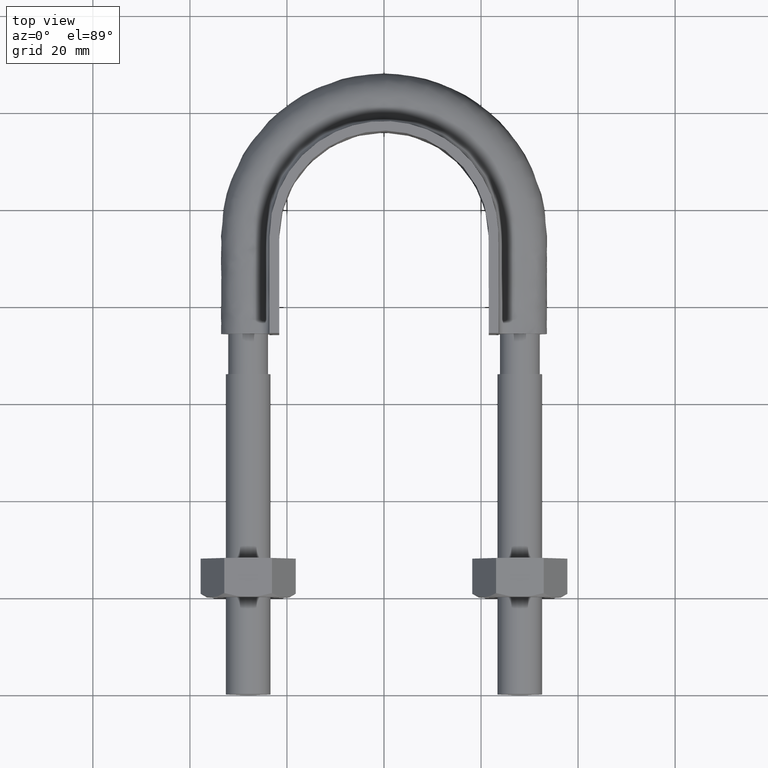
[diagram: clean part render]
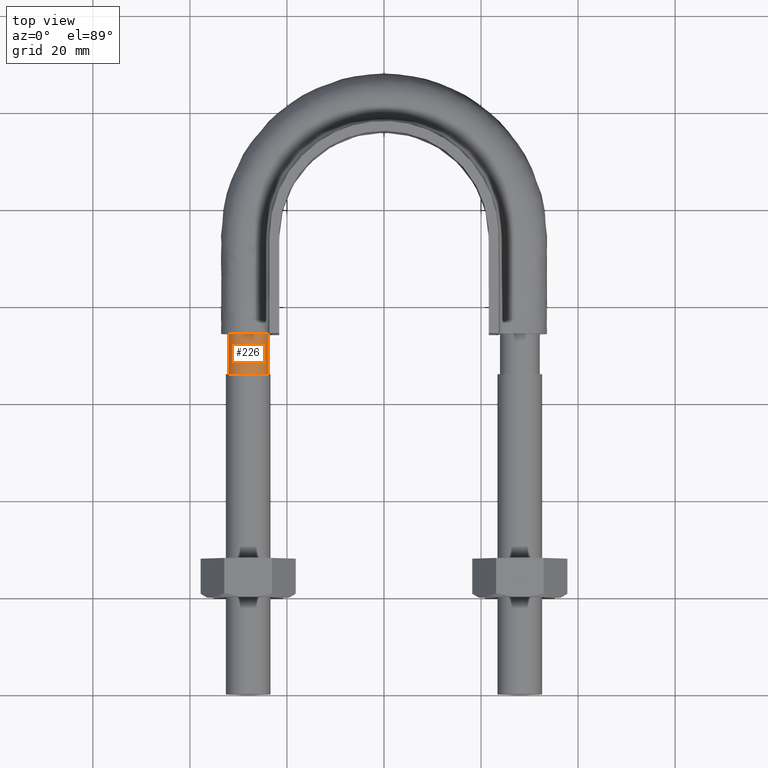
[diagram: same view with one face highlighted and labeled with its STEP entity id]
A machine part, top view. The second image highlights one B-rep face of the part: STEP entity #226.
In plain terms, the highlighted cylindrical surface (bore or boss wall) has radius 4.1 mm, axis along (0, 1, 0).
Its self-contained STEP definition (entity closure, byte-faithful):
#226 = ADVANCED_FACE( '', ( #313, #314 ), #315, .T. );
#313 = FACE_OUTER_BOUND( '', #1161, .T. );
#314 = FACE_OUTER_BOUND( '', #1162, .T. );
#315 = CYLINDRICAL_SURFACE( '', #1163, 4.10000000000000 );
#1161 = EDGE_LOOP( '', ( #1523, #1524, #1525, #1526, #1527, #1528, #1529 ) );
#1162 = EDGE_LOOP( '', ( #1530 ) );
#1163 = AXIS2_PLACEMENT_3D( '', #1531, #1532, #1533 );
#1523 = ORIENTED_EDGE( '', *, *, #2017, .T. );
#1524 = ORIENTED_EDGE( '', *, *, #2018, .T. );
#1525 = ORIENTED_EDGE( '', *, *, #2019, .T. );
#1526 = ORIENTED_EDGE( '', *, *, #2020, .T. );
#1527 = ORIENTED_EDGE( '', *, *, #2021, .T. );
#1528 = ORIENTED_EDGE( '', *, *, #2022, .T. );
#1529 = ORIENTED_EDGE( '', *, *, #2023, .T. );
#1530 = ORIENTED_EDGE( '', *, *, #2024, .T. );
#1531 = CARTESIAN_POINT( '', ( -28.0000000000000, 74.3000000000000, 2.02060048380692E-015 ) );
#1532 = DIRECTION( '', ( 2.44921270764475E-016, 1.00000000000000, 6.12303176911189E-017 ) );
#1533 = DIRECTION( '', ( 1.00000000000000, -2.44921270764475E-016, -7.49830360911069E-033 ) );
#2017 = EDGE_CURVE( '', #2179, #2180, #2181, .T. );
#2018 = EDGE_CURVE( '', #2180, #2182, #2183, .T. );
#2019 = EDGE_CURVE( '', #2182, #2184, #2185, .T. );
#2020 = EDGE_CURVE( '', #2184, #2186, #2187, .T. );
#2021 = EDGE_CURVE( '', #2186, #2188, #2189, .T. );
#2022 = EDGE_CURVE( '', #2188, #2190, #2191, .T. );
#2023 = EDGE_CURVE( '', #2190, #2179, #2192, .T. );
#2024 = EDGE_CURVE( '', #2193, #2193, #2194, .T. );
#2179 = VERTEX_POINT( '', #2630 );
#2180 = VERTEX_POINT( '', #2631 );
#2181 = CIRCLE( '', #2632, 4.10000000000000 );
#2182 = VERTEX_POINT( '', #2633 );
#2183 = CIRCLE( '', #2634, 4.10000000000000 );
#2184 = VERTEX_POINT( '', #2635 );
#2185 = CIRCLE( '', #2636, 4.10000000000000 );
#2186 = VERTEX_POINT( '', #2637 );
#2187 = CIRCLE( '', #2638, 4.10000000000000 );
#2188 = VERTEX_POINT( '', #2639 );
#2189 = CIRCLE( '', #2640, 4.10000000000000 );
#2190 = VERTEX_POINT( '', #2641 );
#2191 = CIRCLE( '', #2642, 4.10000000000000 );
#2192 = CIRCLE( '', #2643, 4.10000000000000 );
#2193 = VERTEX_POINT( '', #2644 );
#2194 = CIRCLE( '', #2645, 4.10000000000000 );
#2630 = CARTESIAN_POINT( '', ( -23.9000000000000, 74.3000000000000, 5.34345494379736E-014 ) );
#2631 = CARTESIAN_POINT( '', ( -25.4436918124004, 74.3000000000000, 3.20550907813583 ) );
#2632 = AXIS2_PLACEMENT_3D( '', #3060, #3061, #3062 );
#2633 = CARTESIAN_POINT( '', ( -28.9123358292367, 74.3000000000000, 3.99720443994186 ) );
#2634 = AXIS2_PLACEMENT_3D( '', #3063, #3064, #3065 );
#2635 = CARTESIAN_POINT( '', ( -31.6939723584001, 74.3000000000000, 1.77892333038169 ) );
#2636 = AXIS2_PLACEMENT_3D( '', #3066, #3067, #3068 );
#2637 = CARTESIAN_POINT( '', ( -31.6939723583899, 74.3000000000000, -1.77892333040284 ) );
#2638 = AXIS2_PLACEMENT_3D( '', #3069, #3070, #3071 );
#2639 = CARTESIAN_POINT( '', ( -28.9123358292208, 74.3000000000000, -3.99720443994548 ) );
#2640 = AXIS2_PLACEMENT_3D( '', #3072, #3073, #3074 );
#2641 = CARTESIAN_POINT( '', ( -25.4436918123791, 74.3000000000000, -3.20550907811886 ) );
#2642 = AXIS2_PLACEMENT_3D( '', #3075, #3076, #3077 );
#2643 = AXIS2_PLACEMENT_3D( '', #3078, #3079, #3080 );
#2644 = CARTESIAN_POINT( '', ( -23.9000000000000, 66.0000000000000, 1.51238884697064E-015 ) );
#2645 = AXIS2_PLACEMENT_3D( '', #3081, #3082, #3083 );
#3060 = CARTESIAN_POINT( '', ( -28.0000000000000, 74.3000000000000, 2.02060048380692E-015 ) );
#3061 = DIRECTION( '', ( -2.44921270764475E-016, -1.00000000000000, -6.12303176911189E-017 ) );
#3062 = DIRECTION( '', ( 1.00000000000000, -2.44921270764475E-016, -7.49830360911069E-033 ) );
#3063 = CARTESIAN_POINT( '', ( -28.0000000000000, 74.3000000000000, 2.02060048380692E-015 ) );
#3064 = DIRECTION( '', ( -2.44921270764475E-016, -1.00000000000000, -6.12303176911189E-017 ) );
#3065 = DIRECTION( '', ( 1.00000000000000, -2.44921270764475E-016, -7.49830360911069E-033 ) );
#3066 = CARTESIAN_POINT( '', ( -28.0000000000000, 74.3000000000000, 2.02060048380692E-015 ) );
#3067 = DIRECTION( '', ( -2.44921270764475E-016, -1.00000000000000, -6.12303176911189E-017 ) );
#3068 = DIRECTION( '', ( 1.00000000000000, -2.44921270764475E-016, -7.49830360911069E-033 ) );
#3069 = CARTESIAN_POINT( '', ( -28.0000000000000, 74.3000000000000, 2.02060048380692E-015 ) );
#3070 = DIRECTION( '', ( -2.44921270764475E-016, -1.00000000000000, -6.12303176911189E-017 ) );
#3071 = DIRECTION( '', ( 1.00000000000000, -2.44921270764475E-016, -7.49830360911069E-033 ) );
#3072 = CARTESIAN_POINT( '', ( -28.0000000000000, 74.3000000000000, 2.02060048380692E-015 ) );
#3073 = DIRECTION( '', ( -2.44921270764475E-016, -1.00000000000000, -6.12303176911189E-017 ) );
#3074 = DIRECTION( '', ( 1.00000000000000, -2.44921270764475E-016, -7.49830360911069E-033 ) );
#3075 = CARTESIAN_POINT( '', ( -28.0000000000000, 74.3000000000000, 2.02060048380692E-015 ) );
#3076 = DIRECTION( '', ( -2.44921270764475E-016, -1.00000000000000, -6.12303176911189E-017 ) );
#3077 = DIRECTION( '', ( 1.00000000000000, -2.44921270764475E-016, -7.49830360911069E-033 ) );
#3078 = CARTESIAN_POINT( '', ( -28.0000000000000, 74.3000000000000, 2.02060048380692E-015 ) );
#3079 = DIRECTION( '', ( -2.44921270764475E-016, -1.00000000000000, -6.12303176911189E-017 ) );
#3080 = DIRECTION( '', ( 1.00000000000000, -2.44921270764475E-016, -7.49830360911069E-033 ) );
#3081 = CARTESIAN_POINT( '', ( -28.0000000000000, 66.0000000000000, 1.51238884697064E-015 ) );
#3082 = DIRECTION( '', ( 2.44921270764475E-016, 1.00000000000000, 6.12303176911189E-017 ) );
#3083 = DIRECTION( '', ( 1.00000000000000, -2.44921270764475E-016, 0.000000000000000 ) );